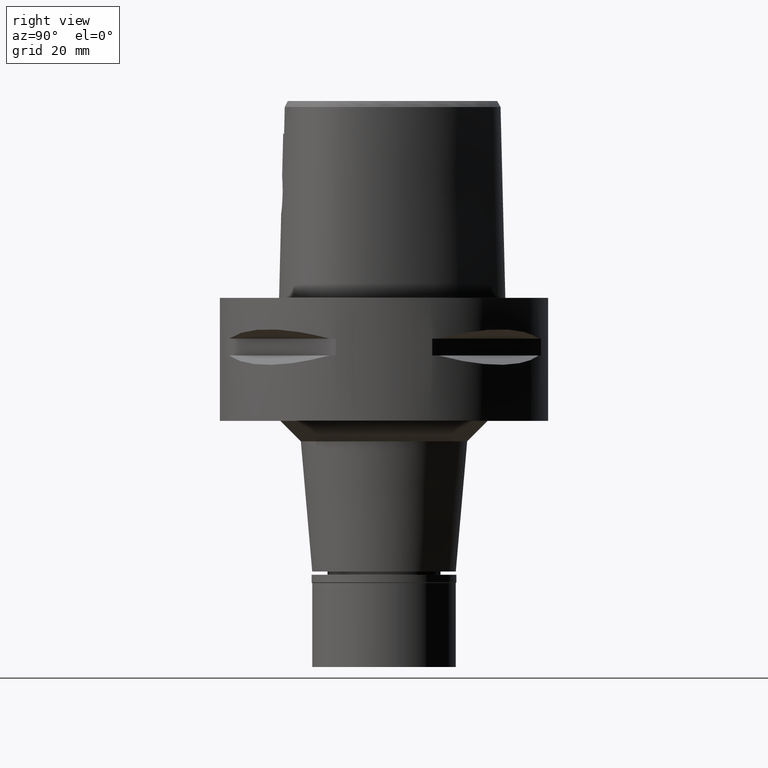
[diagram: clean part render]
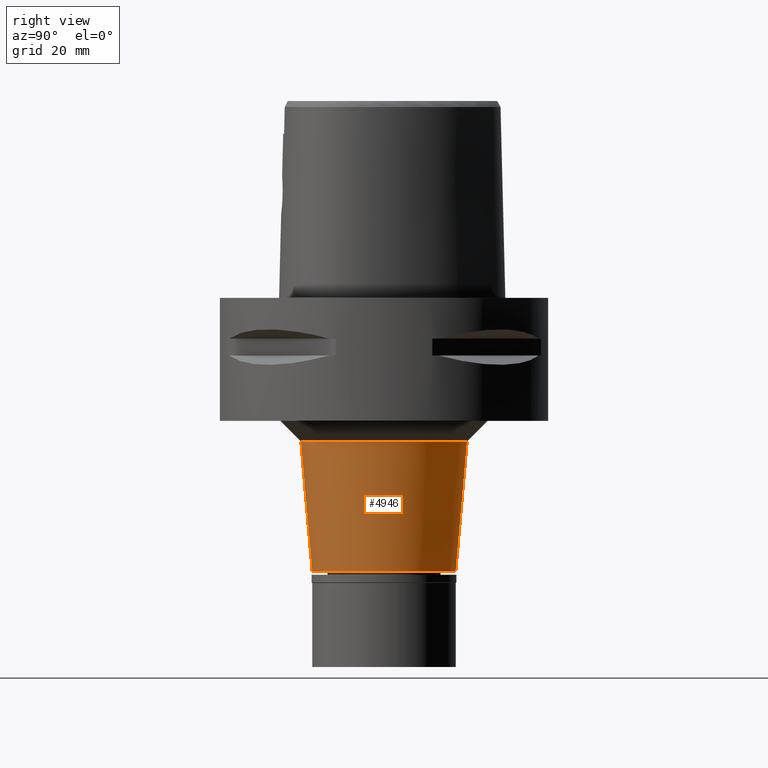
[diagram: same view with one face highlighted and labeled with its STEP entity id]
A machine part, right view. The second image highlights one B-rep face of the part: STEP entity #4946.
In plain terms, the highlighted conical surface has half-angle 5 deg.
Its self-contained STEP definition (entity closure, byte-faithful):
#27 = VERTEX_POINT ( 'NONE', #557 ) ;
#151 = ORIENTED_EDGE ( 'NONE', *, *, #4213, .T. ) ;
#447 = VERTEX_POINT ( 'NONE', #4357 ) ;
#490 = LINE ( 'NONE', #2074, #1119 ) ;
#497 = DIRECTION ( 'NONE',  ( 0.0000000000000000000, -1.000000000000000000, 0.0000000000000000000 ) ) ;
#545 = CONICAL_SURFACE ( 'NONE', #2123, 18.88669531688999825, 0.08726646259969973729 ) ;
#557 = CARTESIAN_POINT ( 'NONE',  ( 0.0000000000000000000, -17.50000000000000000, -66.69999999999998863 ) ) ;
#722 = FACE_OUTER_BOUND ( 'NONE', #1310, .T. ) ;
#747 = DIRECTION ( 'NONE',  ( 0.0000000000000000000, 0.0000000000000000000, 1.000000000000000000 ) ) ;
#935 = EDGE_CURVE ( 'NONE', #3231, #4044, #2522, .T. ) ;
#1105 = CARTESIAN_POINT ( 'NONE',  ( 0.0000000000000000000, 0.0000000000000000000, -50.85000000000000142 ) ) ;
#1119 = VECTOR ( 'NONE', #3634, 1000.000000000000000 ) ;
#1164 = EDGE_CURVE ( 'NONE', #27, #447, #2198, .T. ) ;
#1231 = DIRECTION ( 'NONE',  ( 0.0000000000000000000, 0.08715574274761424267, -0.9961946980917494310 ) ) ;
#1310 = EDGE_LOOP ( 'NONE', ( #3372, #151, #4376, #2529 ) ) ;
#1420 = EDGE_CURVE ( 'NONE', #4044, #447, #490, .T. ) ;
#1479 = DIRECTION ( 'NONE',  ( 0.0000000000000000000, -1.000000000000000000, 0.0000000000000000000 ) ) ;
#2074 = CARTESIAN_POINT ( 'NONE',  ( 0.0000000000000000000, 20.27339063376999917, -35.00000000000000000 ) ) ;
#2123 = AXIS2_PLACEMENT_3D ( 'NONE', #1105, #4249, #3077 ) ;
#2198 = CIRCLE ( 'NONE', #3021, 17.50000000000000000 ) ;
#2522 = CIRCLE ( 'NONE', #4318, 20.27339063378000006 ) ;
#2529 = ORIENTED_EDGE ( 'NONE', *, *, #1420, .F. ) ;
#2863 = VECTOR ( 'NONE', #1231, 1000.000000000000000 ) ;
#2899 = CARTESIAN_POINT ( 'NONE',  ( 0.0000000000000000000, 20.27339063376999917, -35.00000000000000000 ) ) ;
#2937 = CARTESIAN_POINT ( 'NONE',  ( 0.0000000000000000000, -20.27339063376999917, -35.00000000000000000 ) ) ;
#3021 = AXIS2_PLACEMENT_3D ( 'NONE', #3491, #3620, #497 ) ;
#3077 = DIRECTION ( 'NONE',  ( 0.0000000000000000000, 1.000000000000000000, 0.0000000000000000000 ) ) ;
#3231 = VERTEX_POINT ( 'NONE', #2937 ) ;
#3372 = ORIENTED_EDGE ( 'NONE', *, *, #935, .F. ) ;
#3491 = CARTESIAN_POINT ( 'NONE',  ( 0.0000000000000000000, 0.0000000000000000000, -66.69999999999998863 ) ) ;
#3620 = DIRECTION ( 'NONE',  ( 0.0000000000000000000, 0.0000000000000000000, 1.000000000000000000 ) ) ;
#3634 = DIRECTION ( 'NONE',  ( 0.0000000000000000000, -0.08715574274761424267, -0.9961946980917494310 ) ) ;
#4044 = VERTEX_POINT ( 'NONE', #2899 ) ;
#4213 = EDGE_CURVE ( 'NONE', #3231, #27, #4287, .T. ) ;
#4249 = DIRECTION ( 'NONE',  ( 0.0000000000000000000, 0.0000000000000000000, 1.000000000000000000 ) ) ;
#4287 = LINE ( 'NONE', #4750, #2863 ) ;
#4318 = AXIS2_PLACEMENT_3D ( 'NONE', #5031, #747, #1479 ) ;
#4357 = CARTESIAN_POINT ( 'NONE',  ( 0.0000000000000000000, 17.50000000000000000, -66.69999999999998863 ) ) ;
#4376 = ORIENTED_EDGE ( 'NONE', *, *, #1164, .T. ) ;
#4750 = CARTESIAN_POINT ( 'NONE',  ( 0.0000000000000000000, -20.27339063376999917, -35.00000000000000000 ) ) ;
#4946 = ADVANCED_FACE ( 'NONE', ( #722 ), #545, .T. ) ;
#5031 = CARTESIAN_POINT ( 'NONE',  ( 0.0000000000000000000, 0.0000000000000000000, -35.00000000000000000 ) ) ;